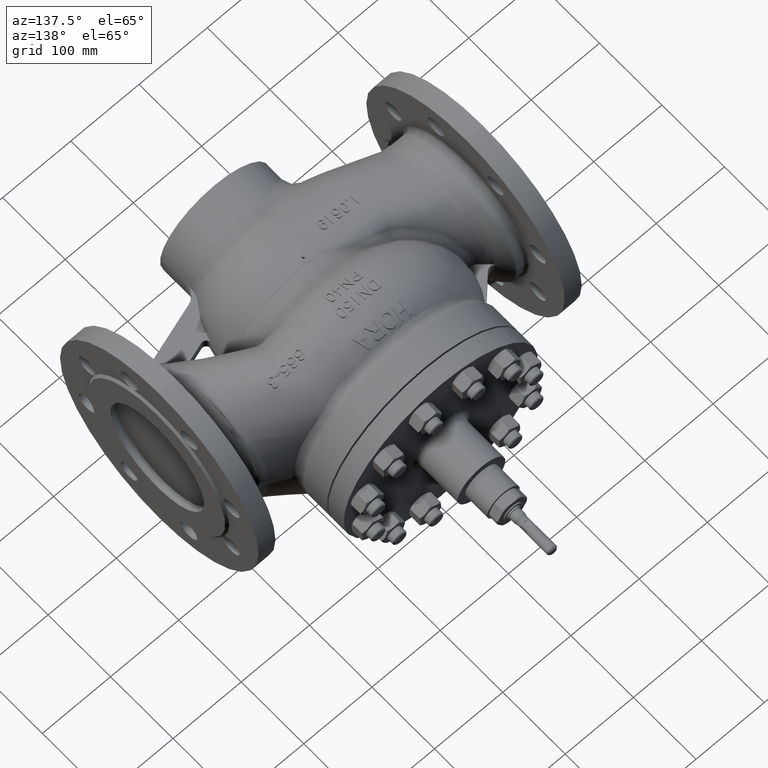
[diagram: clean part render]
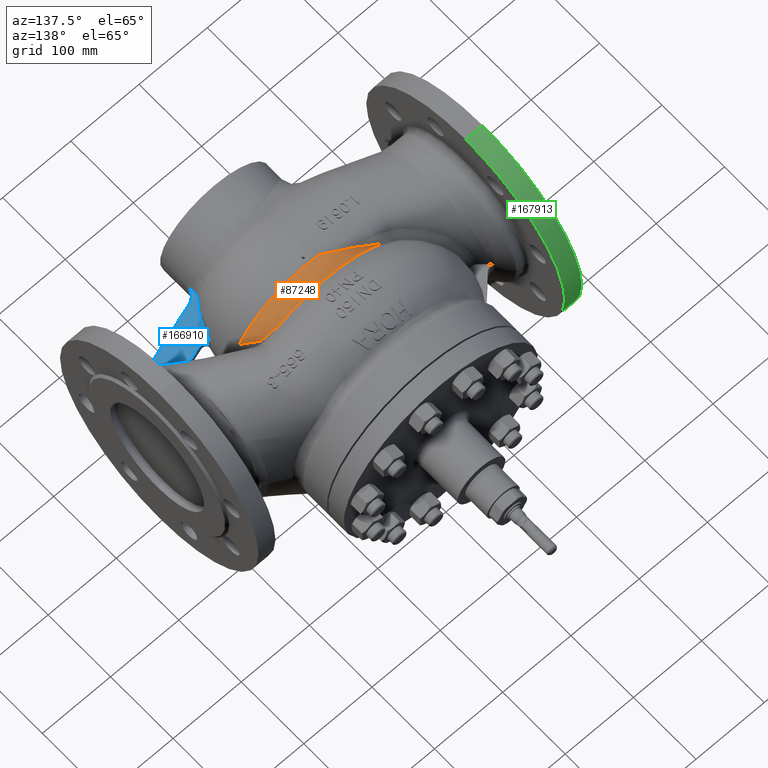
[diagram: same view with three faces highlighted in distinct colors, each labeled with its STEP entity id]
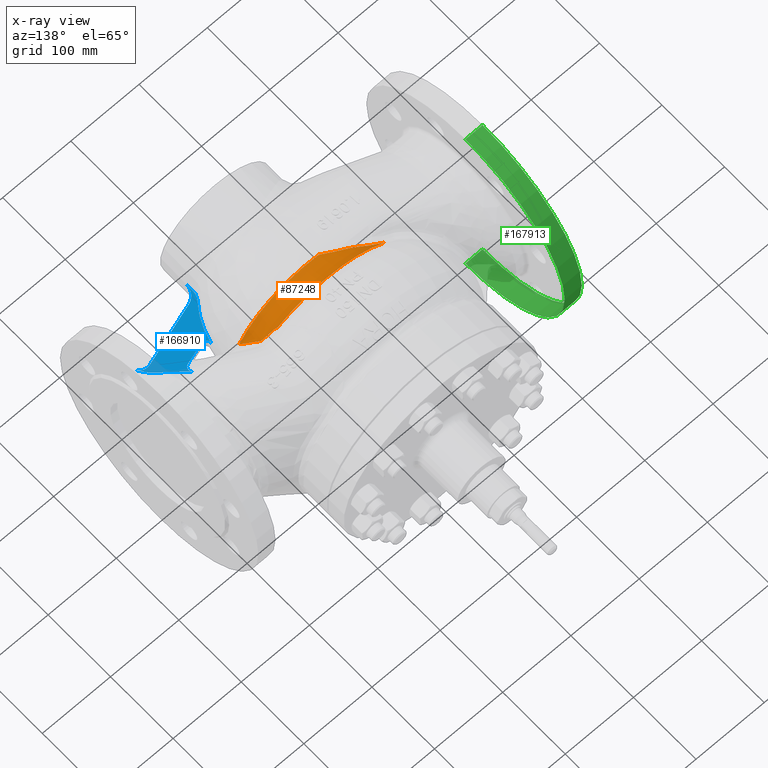
[diagram: x-ray of the same camera — body ghosted, the three highlighted faces saturated]
A machine part, auxiliary view with three faces highlighted in distinct colors.
The next image is the same camera in x-ray (body ghosted, the three faces saturated) — at least one of them is partly hidden behind the body in this view.
Their STEP definitions:

[orange] entity #87248 — the highlighted toroidal blend (fillet) surface has major radius 149.528 mm and minor (blend) radius 40 mm.
#4090 = CARTESIAN_POINT ( 'NONE',  ( -83.29608594553452900, 8.262662660858170600, 92.79984763517875000 ) ) ;
#4755 = CARTESIAN_POINT ( 'NONE',  ( -56.14146134176539200, -6.768028800275327900, 98.08652754950988100 ) ) ;
#6492 = EDGE_CURVE ( 'NONE', #112526, #105099, #181289, .T. ) ;
#6826 = CARTESIAN_POINT ( 'NONE',  ( 84.73726719108825000, 1.219393874014602900, 81.79482687094893800 ) ) ;
#7493 = CARTESIAN_POINT ( 'NONE',  ( 87.78975328473291000, -0.6248616825885569000, 76.49513260057541700 ) ) ;
#7681 = CARTESIAN_POINT ( 'NONE',  ( -26.76238214834908600, -18.67795672334036900, 106.4615166002540000 ) ) ;
#8131 = ORIENTED_EDGE ( 'NONE', *, *, #83376, .F. ) ;
#8171 = CARTESIAN_POINT ( 'NONE',  ( 94.73422699125920600, -16.04640325369330300, 56.17901379525004300 ) ) ;
#12261 = CARTESIAN_POINT ( 'NONE',  ( 82.97384350715975600, 1.723755131793362400, 84.13521408590844400 ) ) ;
#13602 = CARTESIAN_POINT ( 'NONE',  ( 78.00167853284395400, 3.899040644230003800, 91.21408358418987900 ) ) ;
#15408 = CARTESIAN_POINT ( 'NONE',  ( -7.222237291452134400E-032, 8.968392305759749700, 125.6239716294558000 ) ) ;
#19115 = CARTESIAN_POINT ( 'NONE',  ( -50.28133065175736500, -9.145938303700646100, 100.1256659650294100 ) ) ;
#19778 = CARTESIAN_POINT ( 'NONE',  ( -81.06784950192067600, 7.156181151410640600, 92.98588111165028600 ) ) ;
#20446 = CARTESIAN_POINT ( 'NONE',  ( -50.28133065175736500, -9.145938303700646100, 100.1256659650294100 ) ) ;
#22516 = CARTESIAN_POINT ( 'NONE',  ( 85.61382218389167100, 0.9859190325453605100, 80.61607335837803100 ) ) ;
#23187 = CARTESIAN_POINT ( 'NONE',  ( 87.92668270383654800, -0.9081416654552004800, 76.04645918073508400 ) ) ;
#23386 = CARTESIAN_POINT ( 'NONE',  ( -28.77873449630524800, -17.73146788895005700, 106.0555228892342300 ) ) ;
#23870 = CARTESIAN_POINT ( 'NONE',  ( 98.59076896631583500, -23.10372149930330500, 47.70888192193759600 ) ) ;
#27773 = DIRECTION ( 'NONE',  ( 1.891178308424548000E-018, -1.000000000000000000, -0.0000000000000000000 ) ) ;
#28632 = CARTESIAN_POINT ( 'NONE',  ( 72.07635824700331300, 8.968392305759749700, 102.8901396140949600 ) ) ;
#29300 = CARTESIAN_POINT ( 'NONE',  ( 79.19444842250321400, 3.271415089419122500, 89.43111105114185500 ) ) ;
#31452 = CARTESIAN_POINT ( 'NONE',  ( 1.106937068285625500E-016, 8.968392305759749700, 0.0000000000000000000 ) ) ;
#35493 = CARTESIAN_POINT ( 'NONE',  ( -77.41203245665150200, 5.206775302459727900, 93.32586182577271900 ) ) ;
#38216 = CARTESIAN_POINT ( 'NONE',  ( 86.03633247652112500, 0.8541034508561006200, 80.01917369087718200 ) ) ;
#38889 = CARTESIAN_POINT ( 'NONE',  ( 88.15777943130257200, -1.516448940519598200, 75.16348257470096400 ) ) ;
#39078 = CARTESIAN_POINT ( 'NONE',  ( -31.47799429687065500, -16.53431219408204100, 105.4778406373386200 ) ) ;
#39570 = CARTESIAN_POINT ( 'NONE',  ( 96.60205219394461600, -19.56964108839475700, 51.91610327268933400 ) ) ;
#41907 = AXIS2_PLACEMENT_3D ( 'NONE', #162365, #68902, #178061 ) ;
#44342 = CARTESIAN_POINT ( 'NONE',  ( 72.31066634406403200, 8.264343604369880600, 101.5977424565500700 ) ) ;
#45029 = CARTESIAN_POINT ( 'NONE',  ( 80.82489321803888100, 2.496923820677001700, 87.06392324794096300 ) ) ;
#47165 = DIRECTION ( 'NONE',  ( -1.000000000000000000, 0.0000000000000000000, 0.0000000000000000000 ) ) ;
#51204 = CARTESIAN_POINT ( 'NONE',  ( -73.11264538130790000, 2.732717481427519700, 93.86427415982862500 ) ) ;
#53547 = VERTEX_POINT ( 'NONE', #19115 ) ;
#53774 = B_SPLINE_CURVE_WITH_KNOTS ( 'NONE', 3,
 ( #69811, #178955, #85455, #194662, #101164, #7681, #116856, #23386, #132555, #39078, #148232, #54805, #163939, #70470, #179642, #86123 ),
 .UNSPECIFIED., .F., .F.,
 ( 4, 2, 2, 2, 2, 2, 2, 4 ),
 ( 0.005992751151878133500, 0.01053906082644973100, 0.01508537050102132600, 0.01735852533830712500, 0.01963168017559292400, 0.02417798985016454700, 0.03327060919930780600, 0.04236322854845105100 ),
 .UNSPECIFIED. ) ;
#53837 = EDGE_CURVE ( 'NONE', #169418, #139140, #188040, .T. ) ;
#53935 = CARTESIAN_POINT ( 'NONE',  ( 86.34391857542223600, 0.7447808035502722100, 79.56696891889801300 ) ) ;
#54358 = CARTESIAN_POINT ( 'NONE',  ( 1.713477927620213000E-016, -23.10372149930331500, 0.0000000000000000000 ) ) ;
#54615 = CARTESIAN_POINT ( 'NONE',  ( 88.79306946960865300, -3.166007922067975800, 72.83252672813903000 ) ) ;
#54805 = CARTESIAN_POINT ( 'NONE',  ( -36.88441710468711000, -14.28204728034501200, 104.1946536042532600 ) ) ;
#56698 = CARTESIAN_POINT ( 'NONE',  ( -84.79881648490571400, 8.968392305759749700, 92.68518204501516800 ) ) ;
#60046 = CARTESIAN_POINT ( 'NONE',  ( 73.01485268580223900, 7.331798107183865400, 99.69153245121442800 ) ) ;
#61138 = CARTESIAN_POINT ( 'NONE',  ( 98.59076896631583500, -23.10372149930330500, 47.70888192193759600 ) ) ;
#63816 = VERTEX_POINT ( 'NONE', #78712 ) ;
#66247 = CARTESIAN_POINT ( 'NONE',  ( -84.04543689541814900, 8.619623334594404400, 92.74020127548122600 ) ) ;
#66911 = CARTESIAN_POINT ( 'NONE',  ( -68.87713563981299100, 0.2119282687683386500, 94.59938796734222400 ) ) ;
#67539 = ORIENTED_EDGE ( 'NONE', *, *, #85246, .T. ) ;
#68902 = DIRECTION ( 'NONE',  ( -1.891178308424548000E-018, 1.000000000000000000, 0.0000000000000000000 ) ) ;
#69616 = CARTESIAN_POINT ( 'NONE',  ( 86.80417383391757400, 0.5066650715921327000, 78.80380866230666500 ) ) ;
#69811 = CARTESIAN_POINT ( 'NONE',  ( -18.14259956454756300, -23.10372149931153300, 108.0144583870664700 ) ) ;
#70039 = DIRECTION ( 'NONE',  ( 1.000000000000000000, 1.891178308424548000E-018, 0.0000000000000000000 ) ) ;
#70282 = CARTESIAN_POINT ( 'NONE',  ( 89.83479105345260500, -5.677584545587839300, 69.39453989040890700 ) ) ;
#70470 = CARTESIAN_POINT ( 'NONE',  ( -44.95148140137678900, -11.13323867615635100, 101.9062955681997500 ) ) ;
#71310 = B_SPLINE_CURVE_WITH_KNOTS ( 'NONE', 3,
 ( #175377, #66247, #4090, #113245, #19778, #128959, #35493, #144623, #51204, #160350, #66911, #176034, #82539, #191728, #98231, #4755, #113916, #20446 ),
 .UNSPECIFIED., .F., .F.,
 ( 4, 2, 2, 2, 2, 2, 2, 2, 4 ),
 ( -7.328288315209642400E-005, 0.002422759711624147700, 0.004918802306400391100, 0.009910887495952844900, 0.01490297268550529700, 0.01989505787505774600, 0.02488714306461020000, 0.02987922825416265300, 0.03986339863326755100 ),
 .UNSPECIFIED. ) ;
#74612 = AXIS2_PLACEMENT_3D ( 'NONE', #31452, #140594, #47165 ) ;
#75710 = CARTESIAN_POINT ( 'NONE',  ( 73.93088916516673200, 6.495050698745471300, 97.82688539528976400 ) ) ;
#78712 = CARTESIAN_POINT ( 'NONE',  ( -18.14259956454756300, -23.10372149931153300, 108.0144583870664700 ) ) ;
#82539 = CARTESIAN_POINT ( 'NONE',  ( -64.65596509741826000, -2.264978597502032000, 95.56309788703558200 ) ) ;
#83376 = EDGE_CURVE ( 'NONE', #63816, #53547, #53774, .T. ) ;
#84947 = EDGE_CURVE ( 'NONE', #139140, #105099, #143368, .T. ) ;
#85246 = EDGE_CURVE ( 'NONE', #169418, #53547, #71310, .T. ) ;
#85263 = CARTESIAN_POINT ( 'NONE',  ( 87.26354527250072100, 0.1195124923676421900, 77.87522606443863500 ) ) ;
#85455 = CARTESIAN_POINT ( 'NONE',  ( -20.78873211632317500, -21.72077352388165000, 107.5634092778432500 ) ) ;
#85931 = CARTESIAN_POINT ( 'NONE',  ( 91.33459216924855200, -9.080947600243792600, 64.89681354267537500 ) ) ;
#86123 = CARTESIAN_POINT ( 'NONE',  ( -50.28133065175736500, -9.145938303700646100, 100.1256659650294100 ) ) ;
#87248 = ADVANCED_FACE ( 'NONE', ( #109084 ), #104206, .F. ) ;
#88222 = AXIS2_PLACEMENT_3D ( 'NONE', #121262, #27773, #136913 ) ;
#90039 = CARTESIAN_POINT ( 'NONE',  ( 83.41124912355636000, 1.587526608003922100, 83.55023573853682700 ) ) ;
#91379 = CARTESIAN_POINT ( 'NONE',  ( 74.96453857397845900, 5.727554939842732100, 95.99855906440437500 ) ) ;
#94831 = CARTESIAN_POINT ( 'NONE',  ( 72.07635824700331300, 8.968392305759749700, 102.8901396140949600 ) ) ;
#95293 = ORIENTED_EDGE ( 'NONE', *, *, #53837, .F. ) ;
#98231 = CARTESIAN_POINT ( 'NONE',  ( -60.41600995228936500, -4.604074881368920700, 96.74807494123805900 ) ) ;
#100972 = CARTESIAN_POINT ( 'NONE',  ( 87.63668751215404000, -0.3567457527788261400, 76.94884360696931900 ) ) ;
#101164 = CARTESIAN_POINT ( 'NONE',  ( -24.76916041609636900, -19.68335471361980600, 106.8431389490230100 ) ) ;
#101641 = CARTESIAN_POINT ( 'NONE',  ( 93.84081193945388600, -14.29090462009271400, 58.33073343688610600 ) ) ;
#104206 = TOROIDAL_SURFACE ( 'NONE', #175354, 149.5275177277876800, 40.00000000000000000 ) ;
#105099 = VERTEX_POINT ( 'NONE', #94831 ) ;
#105737 = CARTESIAN_POINT ( 'NONE',  ( 81.67477185671312200, 2.163555410989761000, 85.89163586512044900 ) ) ;
#107066 = CARTESIAN_POINT ( 'NONE',  ( 76.82672284103225000, 4.550160412010146000, 92.99911244268629700 ) ) ;
#109084 = FACE_OUTER_BOUND ( 'NONE', #149864, .T. ) ;
#112526 = VERTEX_POINT ( 'NONE', #61138 ) ;
#113245 = CARTESIAN_POINT ( 'NONE',  ( -81.80720702173857700, 7.531371821880520100, 92.92340666638529000 ) ) ;
#113916 = CARTESIAN_POINT ( 'NONE',  ( -53.25137254145605700, -8.051513242491241200, 99.09017020808441600 ) ) ;
#115990 = CARTESIAN_POINT ( 'NONE',  ( 85.39732525561233000, 1.046567845373087800, 80.91208575988237300 ) ) ;
#116665 = CARTESIAN_POINT ( 'NONE',  ( 87.83766841822692600, -0.7171142321161679800, 76.34484001238288900 ) ) ;
#116856 = CARTESIAN_POINT ( 'NONE',  ( -27.43360501005838300, -18.35655845123000100, 106.3290872076805900 ) ) ;
#121262 = CARTESIAN_POINT ( 'NONE',  ( 1.713477927620213000E-016, -23.10372149930331200, 0.0000000000000000000 ) ) ;
#122768 = CARTESIAN_POINT ( 'NONE',  ( 78.39751447924319900, 3.686948822666727300, 90.61977673638814700 ) ) ;
#128959 = CARTESIAN_POINT ( 'NONE',  ( -78.86348824727028300, 6.006116154531668800, 93.18223718002164400 ) ) ;
#131686 = CARTESIAN_POINT ( 'NONE',  ( 85.93159377609339300, 0.8879538678740284100, 80.16881071290501400 ) ) ;
#132102 = DIRECTION ( 'NONE',  ( 1.891178308424548000E-018, -1.000000000000000000, -0.0000000000000000000 ) ) ;
#132362 = CARTESIAN_POINT ( 'NONE',  ( 87.96638658108388100, -1.008142421263535700, 75.89875077804566700 ) ) ;
#132555 = CARTESIAN_POINT ( 'NONE',  ( -29.45305287240250200, -17.42780287845441100, 105.9143223194319000 ) ) ;
#133040 = CARTESIAN_POINT ( 'NONE',  ( 97.57683146916423300, -21.33802448657069900, 49.80419150583276900 ) ) ;
#136913 = DIRECTION ( 'NONE',  ( 1.000000000000000000, 0.0000000000000000000, 0.0000000000000000000 ) ) ;
#137772 = CARTESIAN_POINT ( 'NONE',  ( 72.14333439374019000, 8.599485608221249000, 102.2388827357919500 ) ) ;
#138452 = CARTESIAN_POINT ( 'NONE',  ( 79.59446266706424900, 3.066753598385936200, 88.83648040783568000 ) ) ;
#139140 = VERTEX_POINT ( 'NONE', #15408 ) ;
#140594 = DIRECTION ( 'NONE',  ( -1.891178308424548000E-018, 1.000000000000000000, 0.0000000000000000000 ) ) ;
#143368 = CIRCLE ( 'NONE', #74612, 125.6239716294558000 ) ;
#144623 = CARTESIAN_POINT ( 'NONE',  ( -74.53546298435615800, 3.569358191655572100, 93.66699062631106200 ) ) ;
#147354 = CARTESIAN_POINT ( 'NONE',  ( 86.24218973683177600, 0.7822902287444578600, 79.71834023573470100 ) ) ;
#148034 = CARTESIAN_POINT ( 'NONE',  ( 88.31205262635126000, -1.928428397951634100, 74.57910272181956700 ) ) ;
#148232 = CARTESIAN_POINT ( 'NONE',  ( -32.83045858531875900, -15.96157803873045600, 105.1697047507238400 ) ) ;
#149864 = EDGE_LOOP ( 'NONE', ( #201518, #200328, #162052, #95293, #67539, #8131 ) ) ;
#152380 = CIRCLE ( 'NONE', #88222, 109.5275177277876800 ) ;
#153476 = CARTESIAN_POINT ( 'NONE',  ( 72.74516206776355900, 7.630247515113686600, 100.3241812594702400 ) ) ;
#160350 = CARTESIAN_POINT ( 'NONE',  ( -70.28351516296926600, 1.053942689151677700, 94.33046411502346000 ) ) ;
#162052 = ORIENTED_EDGE ( 'NONE', *, *, #84947, .F. ) ;
#162365 = CARTESIAN_POINT ( 'NONE',  ( 1.106937068285625500E-016, 8.968392305759749700, 0.0000000000000000000 ) ) ;
#163066 = CARTESIAN_POINT ( 'NONE',  ( 86.63385192821388600, 0.6164615607657297800, 79.11092212387224300 ) ) ;
#163745 = CARTESIAN_POINT ( 'NONE',  ( 89.13170129580004200, -3.998259826895106600, 71.67887570827967600 ) ) ;
#163939 = CARTESIAN_POINT ( 'NONE',  ( -39.58223870660794600, -13.21309612373067400, 103.4772929031728500 ) ) ;
#169181 = CARTESIAN_POINT ( 'NONE',  ( 73.60678187964700200, 6.764859842588912800, 98.44442457577207500 ) ) ;
#169418 = VERTEX_POINT ( 'NONE', #56698 ) ;
#175354 = AXIS2_PLACEMENT_3D ( 'NONE', #54358, #132102, #70039 ) ;
#175377 = CARTESIAN_POINT ( 'NONE',  ( -84.79881648490571400, 8.968392305759749700, 92.68518204501516800 ) ) ;
#176034 = CARTESIAN_POINT ( 'NONE',  ( -66.06424445480367100, -1.447111806964636900, 95.21549149382403200 ) ) ;
#178061 = DIRECTION ( 'NONE',  ( -1.000000000000000000, 0.0000000000000000000, 0.0000000000000000000 ) ) ;
#178763 = CARTESIAN_POINT ( 'NONE',  ( 87.11859518337743700, 0.2582062092780906800, 78.18650927541521900 ) ) ;
#178955 = CARTESIAN_POINT ( 'NONE',  ( -19.46328349724650100, -22.40633470823128800, 107.7926303086767300 ) ) ;
#179443 = CARTESIAN_POINT ( 'NONE',  ( 90.20020775671967800, -6.524226599485599500, 68.26316339421450200 ) ) ;
#179642 = CARTESIAN_POINT ( 'NONE',  ( -47.62381150038405100, -10.12520245818910200, 101.0522016528898100 ) ) ;
#181289 = B_SPLINE_CURVE_WITH_KNOTS ( 'NONE', 3,
 ( #23870, #133040, #39570, #8171, #101641, #195138, #85931, #179443, #70282, #163745, #54615, #148034, #38889, #132362, #23187, #116665, #7493, #100972, #194471, #85263, #178763, #69616, #163066, #53935, #147354, #38216, #131686, #22516, #115990, #6826, #199222, #90039, #12261, #105737, #45029, #138452, #29300, #122768, #13602, #107066, #200555, #91379, #184893, #75710, #169181, #60046, #153476, #44342, #137772, #28632 ),
 .UNSPECIFIED., .F., .F.,
 ( 4, 2, 2, 2, 2, 2, 2, 2, 2, 2, 2, 2, 2, 2, 2, 2, 2, 2, 2, 2, 2, 2, 2, 2, 4 ),
 ( 0.005256279603723339500, 0.01402115857872781600, 0.02278603755373229100, 0.03155091652873680300, 0.03593335601623905800, 0.04031579550374131400, 0.04250701524749242500, 0.04305482018343020200, 0.04360262511936798700, 0.04469823499124357700, 0.04579384486311916700, 0.04688945473499476400, 0.04743725967093254100, 0.04798506460687031900, 0.04908067447874583900, 0.05127189422249682500, 0.05346311396624781100, 0.05784555345374981600, 0.06003677319750083700, 0.06222799294125185700, 0.06661043242875389100, 0.06880165217250487600, 0.07099287191625587600, 0.07318409166000687500, 0.07537531140375786100 ),
 .UNSPECIFIED. ) ;
#184893 = CARTESIAN_POINT ( 'NONE',  ( 74.60955448676426700, 5.976466694047839900, 96.60415882749066400 ) ) ;
#188040 = CIRCLE ( 'NONE', #41907, 125.6239716294558000 ) ;
#191728 = CARTESIAN_POINT ( 'NONE',  ( -61.83116987571979500, -3.843869281086922800, 96.32969274434404400 ) ) ;
#194471 = CARTESIAN_POINT ( 'NONE',  ( 87.52247397973212600, -0.1893246962490444100, 77.25504269655256500 ) ) ;
#194662 = CARTESIAN_POINT ( 'NONE',  ( -23.44180474026471800, -20.35959512364487300, 107.0885169616865400 ) ) ;
#195138 = CARTESIAN_POINT ( 'NONE',  ( 92.14107502337094500, -10.80814285437730000, 62.68963723906567500 ) ) ;
#196291 = EDGE_CURVE ( 'NONE', #112526, #63816, #152380, .T. ) ;
#199222 = CARTESIAN_POINT ( 'NONE',  ( 84.29273257173862500, 1.335018335685942600, 82.37996134518623100 ) ) ;
#200328 = ORIENTED_EDGE ( 'NONE', *, *, #6492, .T. ) ;
#200555 = CARTESIAN_POINT ( 'NONE',  ( 76.05886582725740700, 5.003359196262509900, 94.19139789007422800 ) ) ;
#201518 = ORIENTED_EDGE ( 'NONE', *, *, #196291, .F. ) ;

[blue] entity #166910 — the highlighted planar face has unit normal (0, 0, -1).
#328 = CARTESIAN_POINT ( 'NONE',  ( 79.64766161037026400, -127.0751004300291200, 7.500000000000001800 ) ) ;
#852 = DIRECTION ( 'NONE',  ( -0.9551868768705889000, -0.2960034294635964800, 0.0000000000000000000 ) ) ;
#2895 = CARTESIAN_POINT ( 'NONE',  ( 180.7001900784730100, -83.98734404641221800, 7.500000000000000900 ) ) ;
#3456 = EDGE_CURVE ( 'NONE', #97051, #12894, #202540, .T. ) ;
#5638 = CARTESIAN_POINT ( 'NONE',  ( 79.52334321523370900, -113.4072122374346300, 7.500000000000000000 ) ) ;
#7875 = CARTESIAN_POINT ( 'NONE',  ( 106.9856725198890400, -59.84742641512619300, 7.499999999999999100 ) ) ;
#8629 = CARTESIAN_POINT ( 'NONE',  ( 108.4970118812295800, -64.09997455229876100, 7.500000000000002700 ) ) ;
#9308 = CARTESIAN_POINT ( 'NONE',  ( 113.4292911528066800, -66.09795882839631500, 7.500000000000000000 ) ) ;
#10796 = CARTESIAN_POINT ( 'NONE',  ( 182.7637696839572400, -80.82811404112079900, 7.500000000000025800 ) ) ;
#12894 = VERTEX_POINT ( 'NONE', #182990 ) ;
#13859 = CARTESIAN_POINT ( 'NONE',  ( 79.74886335840440700, -115.7513418944336800, 7.500000000000000900 ) ) ;
#14686 = CARTESIAN_POINT ( 'NONE',  ( 145.8233469035391200, -54.71601616394219300, 7.500000000000000900 ) ) ;
#15343 = CARTESIAN_POINT ( 'NONE',  ( 83.26059845441051300, -116.6635639004029100, 7.499999999999999100 ) ) ;
#15359 = CARTESIAN_POINT ( 'NONE',  ( 145.9716255780654400, -48.60601844013244500, 7.499999999999998200 ) ) ;
#18580 = CARTESIAN_POINT ( 'NONE',  ( 179.2069988635854300, -83.77189553975218000, 7.500000000000000000 ) ) ;
#19314 = ORIENTED_EDGE ( 'NONE', *, *, #132155, .F. ) ;
#23581 = CARTESIAN_POINT ( 'NONE',  ( 107.0109495485851000, -60.87744849095407300, 7.500000000000000000 ) ) ;
#24321 = CARTESIAN_POINT ( 'NONE',  ( 108.9100552422984500, -64.52050129790497100, 7.499999999999999100 ) ) ;
#24912 = EDGE_CURVE ( 'NONE', #46467, #85568, #171098, .T. ) ;
#25000 = CARTESIAN_POINT ( 'NONE',  ( 114.3979489272180000, -65.95785547865405400, 7.500000000000001800 ) ) ;
#26023 = CARTESIAN_POINT ( 'NONE',  ( 3.876915532270323700E-016, -35.00000000000000000, 7.499999999999998200 ) ) ;
#28717 = EDGE_LOOP ( 'NONE', ( #188675, #132471, #88255, #188286, #88395, #140417, #91604, #59304, #54176, #144393, #59597, #19314, #141706 ) ) ;
#29568 = CARTESIAN_POINT ( 'NONE',  ( 79.64766161036995100, -118.0662386291828600, 7.500000000000000000 ) ) ;
#30387 = CARTESIAN_POINT ( 'NONE',  ( 91.78827455724150800, -109.6956158034911900, 7.500000000000000000 ) ) ;
#30402 = CARTESIAN_POINT ( 'NONE',  ( 146.2899560491318300, -53.76235432812936200, 7.500000000000000900 ) ) ;
#31073 = CARTESIAN_POINT ( 'NONE',  ( 82.39416607008480800, -118.0137450088107700, 7.499999999999998200 ) ) ;
#31088 = CARTESIAN_POINT ( 'NONE',  ( 145.5399110337288600, -47.93719417009337000, 7.500000000000000000 ) ) ;
#31971 = CARTESIAN_POINT ( 'NONE',  ( 84.28234283411744300, -105.2868173016270100, 7.499999999999998200 ) ) ;
#33123 = VERTEX_POINT ( 'NONE', #42073 ) ;
#33633 = CARTESIAN_POINT ( 'NONE',  ( 187.7103940736833500, -87.54069772385327000, 7.500000000000000900 ) ) ;
#34307 = CARTESIAN_POINT ( 'NONE',  ( 178.0673849630269100, -83.69832210366715200, 7.500000000000000900 ) ) ;
#35100 = VERTEX_POINT ( 'NONE', #41916 ) ;
#35637 = EDGE_CURVE ( 'NONE', #33123, #199524, #161953, .T. ) ;
#37464 = VERTEX_POINT ( 'NONE', #176923 ) ;
#38244 = CARTESIAN_POINT ( 'NONE',  ( 155.6546588872736500, -56.41800463830455900, 7.500000000000086200 ) ) ;
#39272 = CARTESIAN_POINT ( 'NONE',  ( 107.2531626687258900, -61.89046420813062400, 7.500000000000000000 ) ) ;
#39880 = B_SPLINE_CURVE_WITH_KNOTS ( 'NONE', 3,
 ( #122360, #151741, #44613, #153742, #60309, #169450, #75972, #185150, #91642, #200821, #107329, #13859, #123034, #29568 ),
 .UNSPECIFIED., .F., .F.,
 ( 4, 2, 2, 2, 2, 2, 4 ),
 ( 3.269816316695867500E-005, 0.003473489418988722400, 0.005193885046899604500, 0.006914280674810486200, 0.008634676302721367900, 0.01035507193063225000, 0.01379586318645404700 ),
 .UNSPECIFIED. ) ;
#40020 = CARTESIAN_POINT ( 'NONE',  ( 109.5197814339671500, -65.02529868018668000, 7.499999999999997300 ) ) ;
#41720 = DIRECTION ( 'NONE',  ( -1.000000000000000000, 0.0000000000000000000, 0.0000000000000000000 ) ) ;
#41916 = CARTESIAN_POINT ( 'NONE',  ( 79.64766161036995100, -118.0662386291828600, 7.500000000000000000 ) ) ;
#42073 = CARTESIAN_POINT ( 'NONE',  ( 142.4897307849045400, -57.25247648845981300, 7.500000000000000000 ) ) ;
#44613 = CARTESIAN_POINT ( 'NONE',  ( 82.88058115519946500, -107.1246613845668500, 7.500000000000000000 ) ) ;
#45450 = CARTESIAN_POINT ( 'NONE',  ( 143.0038889578052000, -57.09314370641413900, 7.500000000000000000 ) ) ;
#45901 = VERTEX_POINT ( 'NONE', #146868 ) ;
#46115 = CARTESIAN_POINT ( 'NONE',  ( 93.79828478663641500, -108.9835421024646800, 7.500000000000000000 ) ) ;
#46130 = CARTESIAN_POINT ( 'NONE',  ( 146.5396884708418100, -52.99943519085591200, 7.500000000000000000 ) ) ;
#46467 = VERTEX_POINT ( 'NONE', #85439 ) ;
#46782 = CARTESIAN_POINT ( 'NONE',  ( 81.40154824889633300, -119.8854666378345500, 7.500000000000001800 ) ) ;
#46798 = CARTESIAN_POINT ( 'NONE',  ( 145.0196521541635700, -47.32716704945345000, 7.499999999999999100 ) ) ;
#47171 = CARTESIAN_POINT ( 'NONE',  ( 177.7129206144397800, -75.32244011729292800, 7.500000000000092400 ) ) ;
#49351 = CARTESIAN_POINT ( 'NONE',  ( 186.8319251790049700, -86.80964003685623700, 7.499999999999998200 ) ) ;
#50018 = CARTESIAN_POINT ( 'NONE',  ( 174.6791015033935800, -83.91933769838730900, 7.500000000000000000 ) ) ;
#54176 = ORIENTED_EDGE ( 'NONE', *, *, #56757, .F. ) ;
#55749 = CARTESIAN_POINT ( 'NONE',  ( 110.5419863433955100, -65.60432852805630000, 7.500000000000000900 ) ) ;
#56757 = EDGE_CURVE ( 'NONE', #115409, #79182, #159471, .T. ) ;
#57907 = CARTESIAN_POINT ( 'NONE',  ( 184.5959933103980600, -83.17739703366160600, 7.499999999999994700 ) ) ;
#59304 = ORIENTED_EDGE ( 'NONE', *, *, #144289, .F. ) ;
#59597 = ORIENTED_EDGE ( 'NONE', *, *, #24912, .F. ) ;
#59753 = FACE_OUTER_BOUND ( 'NONE', #28717, .T. ) ;
#60309 = CARTESIAN_POINT ( 'NONE',  ( 81.75736737408388400, -109.1250741544947100, 7.500000000000000900 ) ) ;
#61807 = CARTESIAN_POINT ( 'NONE',  ( 88.98157606844310400, -111.1746686989115700, 7.500000000000000900 ) ) ;
#61823 = CARTESIAN_POINT ( 'NONE',  ( 146.7411476601826900, -51.68553653441278300, 7.500000000000000900 ) ) ;
#62497 = CARTESIAN_POINT ( 'NONE',  ( 80.49020509845330200, -122.3746686818630100, 7.500000000000000000 ) ) ;
#62512 = CARTESIAN_POINT ( 'NONE',  ( 144.6254727480086600, -46.96585139083428100, 7.500000000000000000 ) ) ;
#62880 = CARTESIAN_POINT ( 'NONE',  ( 180.6140589050746700, -78.07170462409257500, 7.499999999999619000 ) ) ;
#65062 = CARTESIAN_POINT ( 'NONE',  ( 185.5989315469010700, -85.93863360080111100, 7.499999999999997300 ) ) ;
#67465 = EDGE_CURVE ( 'NONE', #37464, #12894, #165695, .T. ) ;
#67917 = DIRECTION ( 'NONE',  ( 0.0000000000000000000, 0.0000000000000000000, -1.000000000000000000 ) ) ;
#68233 = CARTESIAN_POINT ( 'NONE',  ( 173.2201291634130800, -84.37145950468944000, 7.500000000000000000 ) ) ;
#69413 = EDGE_CURVE ( 'NONE', #150786, #199524, #135641, .T. ) ;
#70008 = CARTESIAN_POINT ( 'NONE',  ( 107.0717171110309900, -59.07206835657099500, 7.500000000000000000 ) ) ;
#71408 = CARTESIAN_POINT ( 'NONE',  ( 111.6664809827894100, -65.97637114866633100, 7.499999999999998200 ) ) ;
#71637 = CARTESIAN_POINT ( 'NONE',  ( 144.6254727480086600, -46.96585139083428100, 7.500000000000000000 ) ) ;
#73573 = CARTESIAN_POINT ( 'NONE',  ( 187.8700900289521500, -87.37539385334871200, 7.500000000000016900 ) ) ;
#75972 = CARTESIAN_POINT ( 'NONE',  ( 81.04871475609957100, -110.7047759150851100, 7.500000000000000900 ) ) ;
#76799 = CARTESIAN_POINT ( 'NONE',  ( 144.1603877654518700, -56.44053234827864400, 7.500000000000001800 ) ) ;
#77465 = CARTESIAN_POINT ( 'NONE',  ( 87.24850600433823900, -112.4304292809915600, 7.499999999999998200 ) ) ;
#77480 = CARTESIAN_POINT ( 'NONE',  ( 146.6572146186661600, -50.61567488661017200, 7.500000000000000000 ) ) ;
#78129 = CARTESIAN_POINT ( 'NONE',  ( 80.08896974654824400, -123.9296186174169100, 7.500000000000000900 ) ) ;
#79182 = VERTEX_POINT ( 'NONE', #150072 ) ;
#80686 = CARTESIAN_POINT ( 'NONE',  ( 183.5916336486600900, -84.89350020651812700, 7.499999999999998200 ) ) ;
#83463 = DIRECTION ( 'NONE',  ( 0.0000000000000000000, 1.000000000000000000, 0.0000000000000000000 ) ) ;
#85439 = CARTESIAN_POINT ( 'NONE',  ( 189.5071658117745700, -89.47437087466894900, 7.500000000000023100 ) ) ;
#85568 = VERTEX_POINT ( 'NONE', #68233 ) ;
#85645 = CARTESIAN_POINT ( 'NONE',  ( 107.1279310293021200, -58.81924418156648900, 7.500000000000000000 ) ) ;
#86392 = CARTESIAN_POINT ( 'NONE',  ( 107.2531626687258900, -61.89046420813062400, 7.500000000000000000 ) ) ;
#87073 = CARTESIAN_POINT ( 'NONE',  ( 112.6396343966779500, -66.10362921737375100, 7.500000000000001800 ) ) ;
#88054 = CARTESIAN_POINT ( 'NONE',  ( 93.79828478663641500, -108.9835421024646800, 7.500000000000000000 ) ) ;
#88255 = ORIENTED_EDGE ( 'NONE', *, *, #35637, .T. ) ;
#88395 = ORIENTED_EDGE ( 'NONE', *, *, #101938, .F. ) ;
#89979 = B_SPLINE_CURVE_WITH_KNOTS ( 'NONE', 3,
 ( #154583, #45450, #170288, #76799, #185984, #92481, #201667, #108162, #14686, #123872, #30402, #139542, #46130, #155269, #61823, #170964, #77480, #186653, #93160, #202334, #108842, #15359, #124549, #31088, #140225, #46798, #155947, #62512 ),
 .UNSPECIFIED., .F., .F.,
 ( 4, 2, 2, 2, 2, 2, 2, 2, 2, 2, 2, 2, 2, 4 ),
 ( 6.938893903907228400E-018, 0.001591928553387027000, 0.002387892830080572000, 0.003183857106774116900, 0.004775785660161247100, 0.005571749936854822000, 0.006367714213548395100, 0.007959642766935549200, 0.008755607043629124900, 0.009551571320322704100, 0.01034753559701628200, 0.01114349987370986100, 0.01193946415040343700, 0.01273542842709701600 ),
 .UNSPECIFIED. ) ;
#90240 = VERTEX_POINT ( 'NONE', #31971 ) ;
#91604 = ORIENTED_EDGE ( 'NONE', *, *, #113520, .T. ) ;
#91642 = CARTESIAN_POINT ( 'NONE',  ( 80.47641726976897300, -112.3511560518829200, 7.500000000000002700 ) ) ;
#92481 = CARTESIAN_POINT ( 'NONE',  ( 144.7867743737220100, -55.93667792451159900, 7.500000000000000000 ) ) ;
#93144 = CARTESIAN_POINT ( 'NONE',  ( 86.03990169740754400, -113.4689493452276800, 7.499999999999999100 ) ) ;
#93160 = CARTESIAN_POINT ( 'NONE',  ( 146.4855287086124100, -49.83803522359969000, 7.499999999999998200 ) ) ;
#93821 = CARTESIAN_POINT ( 'NONE',  ( 79.73190320444499000, -126.0210988431201900, 7.500000000000000900 ) ) ;
#94355 = CARTESIAN_POINT ( 'NONE',  ( 153.8131277878349000, -53.74346225553154700, 7.500000000000000000 ) ) ;
#94778 = VECTOR ( 'NONE', #83463, 1000.000000000000000 ) ;
#95661 = B_SPLINE_CURVE_WITH_KNOTS ( 'NONE', 3,
 ( #197758, #10796, #151339, #57907, #167046, #73573, #182749 ),
 .UNSPECIFIED., .F., .F.,
 ( 4, 3, 4 ),
 ( 0.0001933251286066004400, 0.004662261410469716400, 0.01264796707094907600 ),
 .UNSPECIFIED. ) ;
#96382 = CARTESIAN_POINT ( 'NONE',  ( 181.4338056471650600, -84.15732204265455600, 7.499999999999998200 ) ) ;
#97051 = VERTEX_POINT ( 'NONE', #168412 ) ;
#99178 = CARTESIAN_POINT ( 'NONE',  ( 79.64766161036993700, 500000.0000000000600, 7.499999999999998200 ) ) ;
#101357 = CARTESIAN_POINT ( 'NONE',  ( 107.0314997817340700, -59.33164815140955300, 7.500000000000000900 ) ) ;
#101938 = EDGE_CURVE ( 'NONE', #45901, #150786, #118898, .T. ) ;
#102100 = CARTESIAN_POINT ( 'NONE',  ( 108.1211420387871600, -63.64884137321615000, 7.500000000000000900 ) ) ;
#102771 = CARTESIAN_POINT ( 'NONE',  ( 113.2333150316509600, -66.10906059390062200, 7.500000000000001800 ) ) ;
#103001 = CARTESIAN_POINT ( 'NONE',  ( 177.7129206144397800, -75.32244011729292800, 7.500000000000092400 ) ) ;
#103745 = EDGE_CURVE ( 'NONE', #45901, #90240, #125253, .T. ) ;
#107329 = CARTESIAN_POINT ( 'NONE',  ( 80.04995524688848700, -114.0418800617060700, 7.499999999999999100 ) ) ;
#108146 = CARTESIAN_POINT ( 'NONE',  ( 92.77374238712798200, -109.3010381560497100, 7.500000000000000900 ) ) ;
#108162 = CARTESIAN_POINT ( 'NONE',  ( 145.5138641523683400, -55.16353958694586600, 7.500000000000000900 ) ) ;
#108827 = CARTESIAN_POINT ( 'NONE',  ( 84.21163376510335800, -115.3781655399314000, 7.500000000000000900 ) ) ;
#108842 = CARTESIAN_POINT ( 'NONE',  ( 146.2100500832245900, -49.08469512337812500, 7.500000000000000000 ) ) ;
#109488 = CARTESIAN_POINT ( 'NONE',  ( 79.64766161036995100, -128.1364829413874700, 7.500000000000000000 ) ) ;
#111374 = CARTESIAN_POINT ( 'NONE',  ( 189.5071658117745700, -89.47437087466894900, 7.500000000000023100 ) ) ;
#112052 = CARTESIAN_POINT ( 'NONE',  ( 179.5824681141960800, -83.81534316003954600, 7.499999999999998200 ) ) ;
#112435 = EDGE_CURVE ( 'NONE', #33123, #37464, #89979, .T. ) ;
#113520 = EDGE_CURVE ( 'NONE', #90240, #35100, #39880, .T. ) ;
#114802 = DIRECTION ( 'NONE',  ( 0.9551868768705891200, 0.2960034294635958100, 0.0000000000000000000 ) ) ;
#115409 = VERTEX_POINT ( 'NONE', #88054 ) ;
#117049 = CARTESIAN_POINT ( 'NONE',  ( 106.9795610502623300, -60.10509505813571000, 7.500000000000000000 ) ) ;
#117123 = CARTESIAN_POINT ( 'NONE',  ( 107.3691876477433600, -62.26487046939436000, 7.500000000000001800 ) ) ;
#117798 = CARTESIAN_POINT ( 'NONE',  ( 108.6296904559309600, -64.24426892857962900, 7.500000000000000900 ) ) ;
#118476 = CARTESIAN_POINT ( 'NONE',  ( 114.0134662845663300, -66.03636273496323400, 7.500000000000000900 ) ) ;
#118898 = B_SPLINE_CURVE_WITH_KNOTS ( 'NONE', 3,
 ( #85645, #70008, #101357, #7875, #117049, #23581, #132754, #39272 ),
 .UNSPECIFIED., .F., .F.,
 ( 4, 2, 2, 4 ),
 ( 0.001633490912823303300, 0.002406211604020350300, 0.003178932295217397200, 0.004724373677611491700 ),
 .UNSPECIFIED. ) ;
#120446 = VECTOR ( 'NONE', #852, 1000.000000000000100 ) ;
#122360 = CARTESIAN_POINT ( 'NONE',  ( 84.28234283411744300, -105.2868173016270100, 7.499999999999998200 ) ) ;
#123034 = CARTESIAN_POINT ( 'NONE',  ( 79.64766161037133000, -116.9027882980113700, 7.500000000000001800 ) ) ;
#123872 = CARTESIAN_POINT ( 'NONE',  ( 146.1852965434345900, -54.00622079204468700, 7.499999999999998200 ) ) ;
#124534 = CARTESIAN_POINT ( 'NONE',  ( 82.95805374728408300, -117.1085627356617800, 7.500000000000000900 ) ) ;
#124549 = CARTESIAN_POINT ( 'NONE',  ( 145.8374604577755100, -48.37660942932958400, 7.500000000000000000 ) ) ;
#125253 = CIRCLE ( 'NONE', #133784, 109.7440203382398400 ) ;
#127098 = CARTESIAN_POINT ( 'NONE',  ( 188.5372381351518200, -88.32254989999262300, 7.500000000000001800 ) ) ;
#127771 = CARTESIAN_POINT ( 'NONE',  ( 178.4501503326343700, -83.71334547429130200, 7.500000000000002700 ) ) ;
#132155 = EDGE_CURVE ( 'NONE', #97051, #46467, #95661, .T. ) ;
#132471 = ORIENTED_EDGE ( 'NONE', *, *, #112435, .F. ) ;
#132754 = CARTESIAN_POINT ( 'NONE',  ( 107.1004982696955800, -61.39782454249110800, 7.500000000000000900 ) ) ;
#133493 = CARTESIAN_POINT ( 'NONE',  ( 109.0586392963322500, -64.65311727382041300, 7.499999999999999100 ) ) ;
#133784 = AXIS2_PLACEMENT_3D ( 'NONE', #26023, #135177, #41720 ) ;
#134165 = CARTESIAN_POINT ( 'NONE',  ( 114.7772528832258800, -65.84031275009887500, 7.500000000000000000 ) ) ;
#135177 = DIRECTION ( 'NONE',  ( 0.0000000000000000000, 0.0000000000000000000, -1.000000000000000000 ) ) ;
#135641 = B_SPLINE_CURVE_WITH_KNOTS ( 'NONE', 3,
 ( #86392, #117123, #148503, #195588, #102100, #8629, #117798, #24321, #133493, #40020, #149169, #55749, #164883, #71408, #180566, #87073, #196273, #102771, #9308, #118476, #25000, #134165 ),
 .UNSPECIFIED., .F., .F.,
 ( 4, 2, 2, 2, 2, 2, 2, 2, 2, 2, 4 ),
 ( 0.004724373677611491700, 0.005898909490177977100, 0.007073445302744463400, 0.007660713209027720000, 0.008247981115310975800, 0.009422516927877489000, 0.01059705274044400200, 0.01177158855301051500, 0.01235885645929379000, 0.01294612436557706500, 0.01412066017814357500 ),
 .UNSPECIFIED. ) ;
#139542 = CARTESIAN_POINT ( 'NONE',  ( 146.4670061465931500, -53.25995440901802200, 7.500000000000000900 ) ) ;
#140210 = CARTESIAN_POINT ( 'NONE',  ( 82.13170286067439500, -118.4751797114694100, 7.499999999999998200 ) ) ;
#140225 = CARTESIAN_POINT ( 'NONE',  ( 145.3765276237623700, -47.72718732814590200, 7.500000000000001800 ) ) ;
#140417 = ORIENTED_EDGE ( 'NONE', *, *, #103745, .T. ) ;
#141706 = ORIENTED_EDGE ( 'NONE', *, *, #3456, .T. ) ;
#142776 = CARTESIAN_POINT ( 'NONE',  ( 187.4223391325636500, -87.28834426370643500, 7.500000000000001800 ) ) ;
#143442 = CARTESIAN_POINT ( 'NONE',  ( 176.1684173613830100, -83.69602525104272700, 7.500000000000000000 ) ) ;
#144289 = EDGE_CURVE ( 'NONE', #79182, #35100, #187601, .T. ) ;
#144393 = ORIENTED_EDGE ( 'NONE', *, *, #149620, .T. ) ;
#146868 = CARTESIAN_POINT ( 'NONE',  ( 107.1279310293021200, -58.81924418156648900, 7.500000000000000000 ) ) ;
#147668 = CARTESIAN_POINT ( 'NONE',  ( 152.7492699977098300, -52.82862463782669900, 7.500000000000000000 ) ) ;
#148503 = CARTESIAN_POINT ( 'NONE',  ( 107.5210929699002700, -62.62615253080780800, 7.500000000000000000 ) ) ;
#149169 = CARTESIAN_POINT ( 'NONE',  ( 109.8473839040527500, -65.24003822650809100, 7.499999999999998200 ) ) ;
#149620 = EDGE_CURVE ( 'NONE', #115409, #85568, #182508, .T. ) ;
#150072 = CARTESIAN_POINT ( 'NONE',  ( 79.64766161036995100, -128.1364829413874700, 7.500000000000000000 ) ) ;
#150786 = VERTEX_POINT ( 'NONE', #198082 ) ;
#151339 = CARTESIAN_POINT ( 'NONE',  ( 183.6798785534375300, -82.00275783326070200, 7.499999999999994700 ) ) ;
#151741 = CARTESIAN_POINT ( 'NONE',  ( 83.53743916978338300, -106.1800463369967200, 7.500000000000000000 ) ) ;
#153742 = CARTESIAN_POINT ( 'NONE',  ( 82.02221346193964300, -108.6156577822524800, 7.499999999999999100 ) ) ;
#154583 = CARTESIAN_POINT ( 'NONE',  ( 142.4897307849045400, -57.25247648845981300, 7.500000000000000000 ) ) ;
#155253 = CARTESIAN_POINT ( 'NONE',  ( 89.89218904052677300, -110.6324264245746000, 7.500000000000000000 ) ) ;
#155269 = CARTESIAN_POINT ( 'NONE',  ( 146.7027501642560600, -52.21485568183906900, 7.499999999999999100 ) ) ;
#155932 = CARTESIAN_POINT ( 'NONE',  ( 80.99073433959179600, -120.8601393760489900, 7.500000000000001800 ) ) ;
#155947 = CARTESIAN_POINT ( 'NONE',  ( 144.8273176507545900, -47.13883504791331800, 7.499999999999998200 ) ) ;
#156317 = CARTESIAN_POINT ( 'NONE',  ( 181.8476668360982000, -79.65346555277039900, 7.499999999999983100 ) ) ;
#158496 = CARTESIAN_POINT ( 'NONE',  ( 186.5291922249081400, -86.58275318918099100, 7.500000000000000000 ) ) ;
#159159 = CARTESIAN_POINT ( 'NONE',  ( 173.2201291634130800, -84.37145950468944000, 7.500000000000000000 ) ) ;
#159471 = B_SPLINE_CURVE_WITH_KNOTS ( 'NONE', 3,
 ( #46115, #108146, #30387, #155253, #61807, #170949, #77465, #186638, #93144, #202319, #108827, #15343, #124534, #31073, #140210, #46782, #155932, #62497, #171627, #78129, #187328, #93821, #328, #109488 ),
 .UNSPECIFIED., .F., .F.,
 ( 4, 2, 2, 2, 2, 2, 2, 2, 2, 2, 2, 4 ),
 ( 7.156001585963894200E-015, 0.003172165674126236800, 0.006344331348245317100, 0.007930414185304856700, 0.009516497022364397300, 0.01268866269648347800, 0.01427474553354302900, 0.01586082837060258400, 0.01903299404472165400, 0.02061907688178118600, 0.02220515971884072500, 0.02537732539295979200 ),
 .UNSPECIFIED. ) ;
#161953 = LINE ( 'NONE', #94355, #120446 ) ;
#163388 = PLANE ( 'NONE',  #170183 ) ;
#164883 = CARTESIAN_POINT ( 'NONE',  ( 110.9129847905969800, -65.75454533264184000, 7.500000000000001800 ) ) ;
#165695 = B_SPLINE_CURVE_WITH_KNOTS ( 'NONE', 3,
 ( #71637, #38244, #196511, #103001 ),
 .UNSPECIFIED., .F., .F.,
 ( 4, 4 ),
 ( -0.009865261995818094800, 0.03371082468399221000 ),
 .UNSPECIFIED. ) ;
#166910 = ADVANCED_FACE ( 'NONE', ( #59753 ), #163388, .F. ) ;
#167046 = CARTESIAN_POINT ( 'NONE',  ( 186.2330322697170900, -85.27640277457939500, 7.499999999999994700 ) ) ;
#168412 = CARTESIAN_POINT ( 'NONE',  ( 181.8476668360982000, -79.65346555277039900, 7.499999999999983100 ) ) ;
#169450 = CARTESIAN_POINT ( 'NONE',  ( 81.27081604197121600, -110.1690851550520200, 7.500000000000001800 ) ) ;
#170183 = AXIS2_PLACEMENT_3D ( 'NONE', #147668, #67917, #179079 ) ;
#170288 = CARTESIAN_POINT ( 'NONE',  ( 143.4854791878804300, -56.86956287222080400, 7.500000000000000000 ) ) ;
#170949 = CARTESIAN_POINT ( 'NONE',  ( 87.67367544773890100, -112.1024846687829500, 7.499999999999999100 ) ) ;
#170964 = CARTESIAN_POINT ( 'NONE',  ( 146.6917521160921500, -50.88202257196785900, 7.500000000000000000 ) ) ;
#171098 = B_SPLINE_CURVE_WITH_KNOTS ( 'NONE', 3,
 ( #111374, #173499, #127098, #33633, #142776, #49351, #158496, #65062, #174181, #80686, #189896, #96382, #2895, #112052, #18580, #127771, #34307, #143442, #50018, #159159 ),
 .UNSPECIFIED., .F., .F.,
 ( 4, 2, 2, 2, 2, 2, 2, 2, 2, 4 ),
 ( 0.002107628921027443800, 0.004366224316953820100, 0.005495522014917008700, 0.006624819712880196400, 0.008883415108806528400, 0.01114201050473286000, 0.01340060590065919300, 0.01452990359862231700, 0.01565920129658544100, 0.02017639208843785600 ),
 .UNSPECIFIED. ) ;
#171627 = CARTESIAN_POINT ( 'NONE',  ( 80.34224422253463200, -122.8904270414603400, 7.500000000000001800 ) ) ;
#172017 = CARTESIAN_POINT ( 'NONE',  ( 179.2358808689649300, -76.62796197877018800, 7.500000000000000000 ) ) ;
#173499 = CARTESIAN_POINT ( 'NONE',  ( 189.0439772642537800, -88.88049359178070600, 7.500000000000001800 ) ) ;
#174181 = CARTESIAN_POINT ( 'NONE',  ( 184.9494646558397900, -85.55773867209455800, 7.500000000000001800 ) ) ;
#176919 = CARTESIAN_POINT ( 'NONE',  ( 114.7772528832258800, -65.84031275009887500, 7.500000000000000000 ) ) ;
#176923 = CARTESIAN_POINT ( 'NONE',  ( 144.6254727480086600, -46.96585139083428100, 7.500000000000000000 ) ) ;
#179079 = DIRECTION ( 'NONE',  ( -1.000000000000000000, 0.0000000000000000000, -0.0000000000000000000 ) ) ;
#180566 = CARTESIAN_POINT ( 'NONE',  ( 112.0510245575050900, -66.04989940808195600, 7.500000000000000900 ) ) ;
#182508 = LINE ( 'NONE', #5638, #192296 ) ;
#182749 = CARTESIAN_POINT ( 'NONE',  ( 189.5071658117745700, -89.47437087466894900, 7.500000000000023100 ) ) ;
#182990 = CARTESIAN_POINT ( 'NONE',  ( 177.7129206144397800, -75.32244011729292800, 7.500000000000092400 ) ) ;
#185150 = CARTESIAN_POINT ( 'NONE',  ( 80.65099545395338500, -111.7973931639676100, 7.500000000000001800 ) ) ;
#185984 = CARTESIAN_POINT ( 'NONE',  ( 144.3785728292936600, -56.28044231894892800, 7.500000000000000900 ) ) ;
#186638 = CARTESIAN_POINT ( 'NONE',  ( 86.43257586719831000, -113.1130051689583500, 7.500000000000000900 ) ) ;
#186653 = CARTESIAN_POINT ( 'NONE',  ( 146.5541398672105800, -50.09435710199854700, 7.499999999999998200 ) ) ;
#187328 = CARTESIAN_POINT ( 'NONE',  ( 79.98392316526018000, -124.4511060956903500, 7.499999999999999100 ) ) ;
#187601 = LINE ( 'NONE', #99178, #94778 ) ;
#188286 = ORIENTED_EDGE ( 'NONE', *, *, #69413, .F. ) ;
#188675 = ORIENTED_EDGE ( 'NONE', *, *, #67465, .F. ) ;
#189896 = CARTESIAN_POINT ( 'NONE',  ( 182.8777276178299500, -84.60907145118353900, 7.500000000000000900 ) ) ;
#192296 = VECTOR ( 'NONE', #114802, 1000.000000000000000 ) ;
#195588 = CARTESIAN_POINT ( 'NONE',  ( 107.8987207030204600, -63.32171606944024200, 7.500000000000000000 ) ) ;
#196273 = CARTESIAN_POINT ( 'NONE',  ( 112.8388035947277800, -66.11197364121893800, 7.500000000000000000 ) ) ;
#196511 = CARTESIAN_POINT ( 'NONE',  ( 166.6848990717696200, -65.86892800493315300, 7.500000000000085300 ) ) ;
#197758 = CARTESIAN_POINT ( 'NONE',  ( 181.8476668360982000, -79.65346555277039900, 7.499999999999983100 ) ) ;
#198082 = CARTESIAN_POINT ( 'NONE',  ( 107.2531626687258900, -61.89046420813062400, 7.500000000000000000 ) ) ;
#199524 = VERTEX_POINT ( 'NONE', #176919 ) ;
#200821 = CARTESIAN_POINT ( 'NONE',  ( 80.17576555884301100, -113.4735724641795800, 7.500000000000000000 ) ) ;
#201667 = CARTESIAN_POINT ( 'NONE',  ( 144.9780300217102000, -55.75248328153010400, 7.500000000000000000 ) ) ;
#202319 = CARTESIAN_POINT ( 'NONE',  ( 84.90700902289076200, -114.5800385427389500, 7.500000000000000900 ) ) ;
#202334 = CARTESIAN_POINT ( 'NONE',  ( 146.3139811771455600, -49.33411062018351600, 7.500000000000001800 ) ) ;
#202540 = B_SPLINE_CURVE_WITH_KNOTS ( 'NONE', 3,
 ( #156317, #62880, #172017, #47171 ),
 .UNSPECIFIED., .F., .F.,
 ( 4, 4 ),
 ( 2.747661802696606400E-016, 0.005987813260304196400 ),
 .UNSPECIFIED. ) ;

[green] entity #167913 — the highlighted cylindrical surface (partial cylindrical patch) has radius 158.75 mm, axis along (1, -0, -0).
#9264 = VECTOR ( 'NONE', #67872, 1000.000000000000000 ) ;
#14123 = CIRCLE ( 'NONE', #74847, 158.7500000000000300 ) ;
#17453 = VECTOR ( 'NONE', #131365, 1000.000000000000000 ) ;
#28030 = VERTEX_POINT ( 'NONE', #101943 ) ;
#37894 = CARTESIAN_POINT ( 'NONE',  ( -280.7261182279139600, -1.944126793646423300E-014, -158.7500000000000000 ) ) ;
#44318 = EDGE_CURVE ( 'NONE', #28030, #118334, #100474, .T. ) ;
#47958 = DIRECTION ( 'NONE',  ( 0.0000000000000000000, 0.0000000000000000000, 1.000000000000000000 ) ) ;
#50187 = CARTESIAN_POINT ( 'NONE',  ( -211.9999999999999400, -1.635272587944398500E-014, 0.0000000000000000000 ) ) ;
#50803 = LINE ( 'NONE', #177025, #9264 ) ;
#58949 = EDGE_CURVE ( 'NONE', #165568, #28030, #173149, .T. ) ;
#63665 = DIRECTION ( 'NONE',  ( 1.000000000000000000, -0.0000000000000000000, -0.0000000000000000000 ) ) ;
#65886 = DIRECTION ( 'NONE',  ( 1.748382715945128000E-016, 1.000000000000000000, 0.0000000000000000000 ) ) ;
#67872 = DIRECTION ( 'NONE',  ( 1.000000000000000000, -0.0000000000000000000, -0.0000000000000000000 ) ) ;
#74847 = AXIS2_PLACEMENT_3D ( 'NONE', #50187, #159328, #65886 ) ;
#77648 = VERTEX_POINT ( 'NONE', #89447 ) ;
#81656 = FACE_OUTER_BOUND ( 'NONE', #107089, .T. ) ;
#82775 = CARTESIAN_POINT ( 'NONE',  ( -236.9999999999999100, 0.0000000000000000000, 0.0000000000000000000 ) ) ;
#83709 = ORIENTED_EDGE ( 'NONE', *, *, #172103, .T. ) ;
#83996 = ORIENTED_EDGE ( 'NONE', *, *, #171809, .F. ) ;
#89447 = CARTESIAN_POINT ( 'NONE',  ( -211.9999999999999400, 6.162975822039154700E-030, 158.7500000000000300 ) ) ;
#98473 = DIRECTION ( 'NONE',  ( 0.0000000000000000000, 0.0000000000000000000, 1.000000000000000000 ) ) ;
#100474 = LINE ( 'NONE', #37894, #17453 ) ;
#101943 = CARTESIAN_POINT ( 'NONE',  ( -236.9999999999999100, -1.944126793646423300E-014, -158.7500000000000000 ) ) ;
#107089 = EDGE_LOOP ( 'NONE', ( #119862, #172853, #83709, #83996 ) ) ;
#118334 = VERTEX_POINT ( 'NONE', #190809 ) ;
#119862 = ORIENTED_EDGE ( 'NONE', *, *, #44318, .F. ) ;
#126399 = CARTESIAN_POINT ( 'NONE',  ( -280.7261182279139600, 0.0000000000000000000, 0.0000000000000000000 ) ) ;
#131365 = DIRECTION ( 'NONE',  ( 1.000000000000000000, -0.0000000000000000000, -0.0000000000000000000 ) ) ;
#134916 = AXIS2_PLACEMENT_3D ( 'NONE', #126399, #63665, #47958 ) ;
#159328 = DIRECTION ( 'NONE',  ( 1.000000000000000000, -1.051538452005123800E-016, -0.0000000000000000000 ) ) ;
#163537 = CARTESIAN_POINT ( 'NONE',  ( -236.9999999999999100, 0.0000000000000000000, 158.7500000000000000 ) ) ;
#165568 = VERTEX_POINT ( 'NONE', #163537 ) ;
#167913 = ADVANCED_FACE ( 'NONE', ( #81656 ), #201272, .T. ) ;
#171809 = EDGE_CURVE ( 'NONE', #118334, #77648, #14123, .T. ) ;
#172103 = EDGE_CURVE ( 'NONE', #165568, #77648, #50803, .T. ) ;
#172853 = ORIENTED_EDGE ( 'NONE', *, *, #58949, .F. ) ;
#173149 = CIRCLE ( 'NONE', #201483, 158.7500000000000000 ) ;
#177025 = CARTESIAN_POINT ( 'NONE',  ( -280.7261182279139600, 0.0000000000000000000, 158.7500000000000000 ) ) ;
#190809 = CARTESIAN_POINT ( 'NONE',  ( -211.9999999999999400, -1.944126793646423000E-014, -158.7500000000000300 ) ) ;
#191972 = DIRECTION ( 'NONE',  ( -1.000000000000000000, 0.0000000000000000000, 0.0000000000000000000 ) ) ;
#201272 = CYLINDRICAL_SURFACE ( 'NONE', #134916, 158.7500000000000000 ) ;
#201483 = AXIS2_PLACEMENT_3D ( 'NONE', #82775, #191972, #98473 ) ;